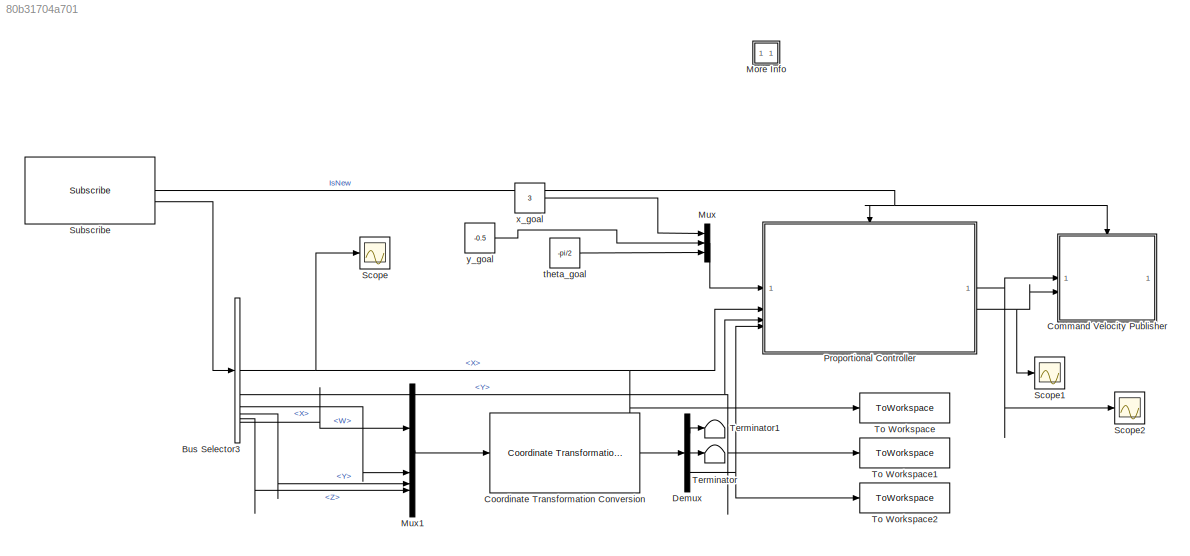
MODEL slx_80b31704a701
KIND model
CONFIG AbsTol = auto
CONFIG EnableMultiTasking = on
CONFIG FixedStep = 0.02
CONFIG MaxStep = auto
CONFIG MinStep = auto
CONFIG RelTol = 1e-3
CONFIG SampleTimeConstraint = Unconstrained
CONFIG SolverName = FixedStepDiscrete
CONFIG StartTime = 0.0
CONFIG StopTime = Inf
BLOCK [BusSelector] Bus Selector3
  OutputSignals = Pose.Pose.Position.X,Pose.Pose.Position.Y,Pose.Pose.Orientation.X,Pose.Pose.Orientation.Y,Pose.Pose.Orientation.Z,Pose.Pose.Orientation.W
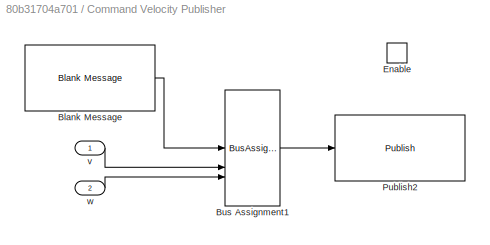
BLOCK [SubSystem] Command Velocity Publisher
BLOCK [Reference] Command Velocity Publisher/Blank Message  REF=robotlib/Blank Message
  SourceBlock = robotlib/Blank Message
  SourceType = ROS Blank Message
BLOCK [BusAssignment] Command Velocity Publisher/Bus Assignment1
  AssignedSignals = Linear.X,Angular.Z
  DialogController = Simulink.DDGSource_BusAssignment
BLOCK [EnablePort] Command Velocity Publisher/Enable
BLOCK [Reference] Command Velocity Publisher/Publish2  REF=robotlib/Publish
  AttributesFormatString = %<messageType>
  SourceBlock = robotlib/Publish
  SourceType = ROS Publish
BLOCK [Inport] Command Velocity Publisher/v
BLOCK [Inport] Command Velocity Publisher/w
  Port = 2
BLOCK [Reference] Coordinate Transformation Conversion  REF=robotcorelib/Coordinate Transformation Conversion
  LibrarySourceBlock = roslib/Utilities/Coordinate Transformation Conversion
  SourceBlock = robotcorelib/Coordinate Transformation Conversion
  SourceType = robotics.slcore.internal.block.CoordinateTransformationConversion
BLOCK [Demux] Demux
  Outputs = 3
BLOCK [SubSystem] More Info
  OpenFcn = showdemo(bdroot(gcb))
BLOCK [Mux] Mux
  DisplayOption = bar
  Inputs = 3
BLOCK [Mux] Mux1
  DisplayOption = bar
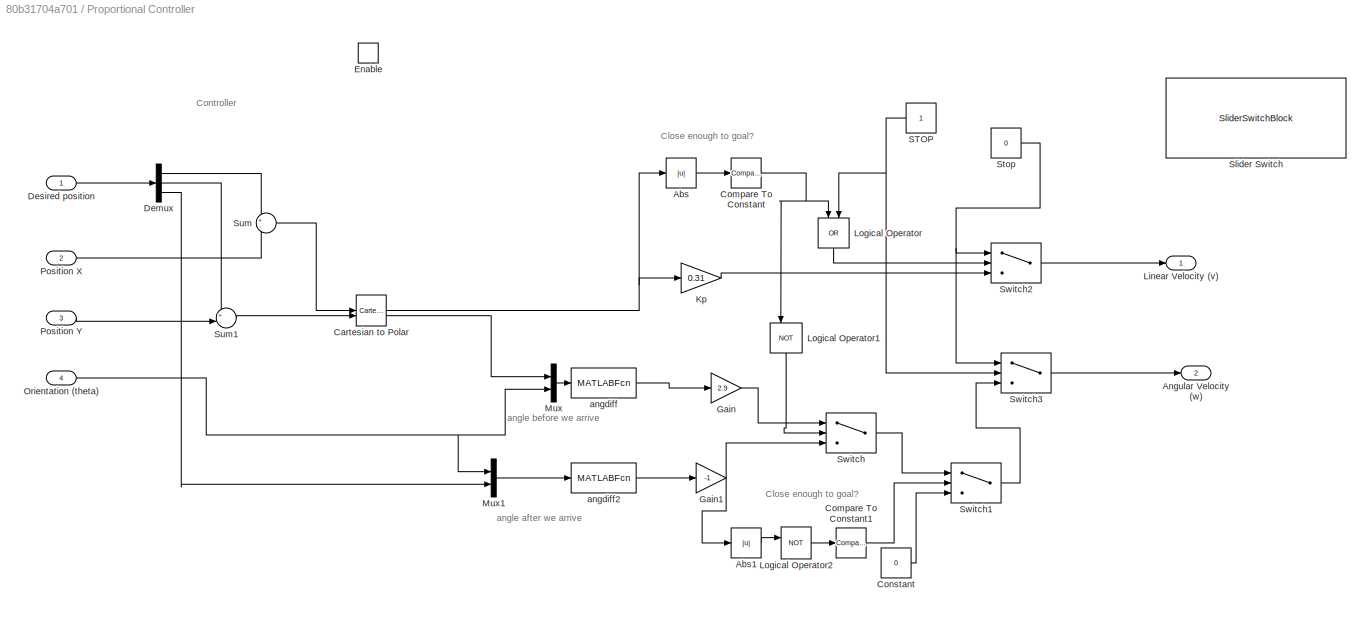
BLOCK [SubSystem] Proportional Controller
BLOCK [Abs] Proportional Controller/Abs
  SaturateOnIntegerOverflow = off
BLOCK [Abs] Proportional Controller/Abs1
  SaturateOnIntegerOverflow = off
BLOCK [Outport] Proportional Controller/Angular Velocity (w)
  Port = 2
  VectorParamsAs1DForOutWhenUnconnected = off
BLOCK [Reference] Proportional Controller/Cartesian to Polar  REF=simulink_extras/Transformations/Cartesian to
Polar
  SourceBlock = simulink_extras/Transformations/Cartesian to\nPolar
  SourceType = Cart2Polar
BLOCK [Reference] Proportional Controller/Compare To Constant  REF=simulink/Logic and Bit
Operations/Compare
To Constant
  SourceBlock = simulink/Logic and Bit\nOperations/Compare\nTo Constant
  SourceType = Compare To Constant
BLOCK [Reference] Proportional Controller/Compare To Constant1  REF=simulink/Logic and Bit
Operations/Compare
To Constant
  SourceBlock = simulink/Logic and Bit\nOperations/Compare\nTo Constant
  SourceType = Compare To Constant
BLOCK [Constant] Proportional Controller/Constant
  Value = 0
BLOCK [Demux] Proportional Controller/Demux
  Outputs = 3
BLOCK [Inport] Proportional Controller/Desired position
BLOCK [EnablePort] Proportional Controller/Enable
BLOCK [Gain] Proportional Controller/Gain
  Gain = 2.9
BLOCK [Gain] Proportional Controller/Gain1
  Gain = -1
BLOCK [Gain] Proportional Controller/Kp
  Gain = 0.31
BLOCK [Outport] Proportional Controller/Linear Velocity (v)
  VectorParamsAs1DForOutWhenUnconnected = off
BLOCK [Logic] Proportional Controller/Logical Operator
  AllPortsSameDT = off
  NameLocation = left
  Operator = OR
  OutDataTypeStr = boolean
BLOCK [Logic] Proportional Controller/Logical Operator1
  AllPortsSameDT = off
  NameLocation = left
  Operator = NOT
  OutDataTypeStr = boolean
BLOCK [Logic] Proportional Controller/Logical Operator2
  AllPortsSameDT = off
  Operator = NOT
  OutDataTypeStr = boolean
BLOCK [Mux] Proportional Controller/Mux
  DisplayOption = bar
  Inputs = 2
BLOCK [Mux] Proportional Controller/Mux1
  DisplayOption = bar
  Inputs = 2
BLOCK [Inport] Proportional Controller/Orientation (theta)
  Port = 4
BLOCK [Inport] Proportional Controller/Position X
  Port = 2
BLOCK [Inport] Proportional Controller/Position Y
  Port = 3
BLOCK [Constant] Proportional Controller/STOP 
  NameLocation = top
BLOCK [SliderSwitchBlock] Proportional Controller/Slider Switch
BLOCK [Constant] Proportional Controller/Stop
  Value = 0
BLOCK [Sum] Proportional Controller/Sum
  Inputs = +-
BLOCK [Sum] Proportional Controller/Sum1
  Inputs = +-|
BLOCK [Switch] Proportional Controller/Switch
  Criteria = u2 > Threshold
  InputSameDT = off
  SaturateOnIntegerOverflow = off
BLOCK [Switch] Proportional Controller/Switch1
  Criteria = u2 > Threshold
  InputSameDT = off
  SaturateOnIntegerOverflow = off
BLOCK [Switch] Proportional Controller/Switch2
  Criteria = u2 ~= 0
  InputSameDT = off
  SaturateOnIntegerOverflow = off
BLOCK [Switch] Proportional Controller/Switch3
  Criteria = u2 ~= 0
  InputSameDT = off
  SaturateOnIntegerOverflow = off
BLOCK [MATLABFcn] Proportional Controller/angdiff
  MATLABFcn = angdiff(u(2), u(1))
BLOCK [MATLABFcn] Proportional Controller/angdiff2
  MATLABFcn = angdiff(u(2), u(1))
BLOCK [Scope] Scope
  Floating = off
  NumInputPorts = 1
  ScopeSpecificationString = Simulink.scopes.TimeScopeBlockCfg('CurrentConfiguration', extmgr.ConfigurationSet(extmgr.Configuration('Core','General UI',true),extmgr.Configuration('Core','Source UI',true),extmgr.Configuration('Sources','WiredSimulink',true),extmgr.Configuration('Visuals','Time Domain',true,'SerializedDisplays',{struct('MinYLimReal','-0.05873','MaxYLimReal','0.52853','YLabelReal','','MinYLimMag','0.00000','MaxY...<+1357ch>
BLOCK [Scope] Scope1
  Floating = off
  NumInputPorts = 1
  ScopeSpecificationString = Simulink.scopes.TimeScopeBlockCfg('CurrentConfiguration', extmgr.ConfigurationSet(extmgr.Configuration('Core','General UI',true),extmgr.Configuration('Core','Source UI',true),extmgr.Configuration('Sources','WiredSimulink',true,'DataLoggingVariableName','ScopeData1'),extmgr.Configuration('Visuals','Time Domain',true,'SerializedDisplays',{struct('MinYLimReal','-0.34679','MaxYLimReal','2.56799','YLab...<+1450ch>
BLOCK [Scope] Scope2
  Floating = off
  NumInputPorts = 1
  ScopeSpecificationString = Simulink.scopes.TimeScopeBlockCfg('CurrentConfiguration', extmgr.ConfigurationSet(extmgr.Configuration('Core','General UI',true),extmgr.Configuration('Core','Source UI',true),extmgr.Configuration('Sources','WiredSimulink',true,'DataLoggingVariableName','ScopeData2'),extmgr.Configuration('Visuals','Time Domain',true,'SerializedDisplays',{struct('MinYLimReal','-0.0274','MaxYLimReal','0.2466','YLabel...<+1378ch>
BLOCK [Reference] Subscribe  REF=robotlib/Subscribe
  SourceBlock = robotlib/Subscribe
  SourceType = ROS Subscribe
BLOCK [Terminator] Terminator
BLOCK [Terminator] Terminator1
BLOCK [ToWorkspace] To Workspace
  FixptAsFi = on
  MaxDataPoints = inf
  SampleTime = -1
  SaveFormat = Timeseries
  VariableName = x_exp
BLOCK [ToWorkspace] To Workspace1
  FixptAsFi = on
  MaxDataPoints = inf
  SampleTime = -1
  SaveFormat = Timeseries
  VariableName = y_exp
BLOCK [ToWorkspace] To Workspace2
  FixptAsFi = on
  MaxDataPoints = inf
  SampleTime = -1
  SaveFormat = Timeseries
  VariableName = theta_exp
BLOCK [Constant] theta_goal
  Value = -pi/2
BLOCK [Constant] x_goal
  Value = 3
BLOCK [Constant] y_goal
  Value = -0.5
ANNOTATION Proportional Controller: Controller
ANNOTATION Proportional Controller: Close enough to goal?
ANNOTATION Proportional Controller: angle after we arrive
ANNOTATION Proportional Controller: angle before we arrive
NET Bus Selector3:1 -> Proportional Controller:2, Scope:1, To Workspace:1
NET Bus Selector3:2 -> Proportional Controller:3, To Workspace1:1
LINE Bus Selector3:3 -> Mux1:2
LINE Bus Selector3:4 -> Mux1:3
LINE Bus Selector3:5 -> Mux1:4
LINE Bus Selector3:6 -> Mux1:1
LINE Command Velocity Publisher/Blank Message:1 -> Command Velocity Publisher/Bus Assignment1:1
LINE Command Velocity Publisher/Bus Assignment1:1 -> Command Velocity Publisher/Publish2:1
LINE Command Velocity Publisher/v:1 -> Command Velocity Publisher/Bus Assignment1:2
LINE Command Velocity Publisher/w:1 -> Command Velocity Publisher/Bus Assignment1:3
LINE Coordinate Transformation Conversion:1 -> Demux:1
LINE Demux:1 -> Terminator1:1
LINE Demux:2 -> Terminator:1
NET Demux:3 -> Proportional Controller:4, To Workspace2:1
LINE Mux1:1 -> Coordinate Transformation Conversion:1
LINE Mux:1 -> Proportional Controller:1
LINE Proportional Controller/Abs1:1 -> Proportional Controller/Logical Operator2:1
LINE Proportional Controller/Abs:1 -> Proportional Controller/Compare To Constant:1
NET Proportional Controller/Cartesian to Polar:1 -> Proportional Controller/Abs:1, Proportional Controller/Kp:1
LINE Proportional Controller/Cartesian to Polar:2 -> Proportional Controller/Mux:1
LINE Proportional Controller/Compare To Constant1:1 -> Proportional Controller/Switch1:2
NET Proportional Controller/Compare To Constant:1 -> Proportional Controller/Logical Operator1:1, Proportional Controller/Logical Operator:1
LINE Proportional Controller/Constant:1 -> Proportional Controller/Switch1:3
LINE Proportional Controller/Demux:1 -> Proportional Controller/Sum:1
LINE Proportional Controller/Demux:2 -> Proportional Controller/Sum1:1
LINE Proportional Controller/Demux:3 -> Proportional Controller/Mux1:2
LINE Proportional Controller/Desired position:1 -> Proportional Controller/Demux:1
NET Proportional Controller/Gain1:1 -> Proportional Controller/Abs1:1, Proportional Controller/Switch:3
LINE Proportional Controller/Gain:1 -> Proportional Controller/Switch:1
LINE Proportional Controller/Kp:1 -> Proportional Controller/Switch2:3
LINE Proportional Controller/Logical Operator1:1 -> Proportional Controller/Switch:2
LINE Proportional Controller/Logical Operator2:1 -> Proportional Controller/Compare To Constant1:1
LINE Proportional Controller/Logical Operator:1 -> Proportional Controller/Switch2:2
LINE Proportional Controller/Mux1:1 -> Proportional Controller/angdiff2:1
LINE Proportional Controller/Mux:1 -> Proportional Controller/angdiff:1
NET Proportional Controller/Orientation (theta):1 -> Proportional Controller/Mux1:1, Proportional Controller/Mux:2
LINE Proportional Controller/Position X:1 -> Proportional Controller/Sum:2
LINE Proportional Controller/Position Y:1 -> Proportional Controller/Sum1:2
NET Proportional Controller/STOP :1 -> Proportional Controller/Logical Operator:2, Proportional Controller/Switch3:2
NET Proportional Controller/Stop:1 -> Proportional Controller/Switch2:1, Proportional Controller/Switch3:1
LINE Proportional Controller/Sum1:1 -> Proportional Controller/Cartesian to Polar:2
LINE Proportional Controller/Sum:1 -> Proportional Controller/Cartesian to Polar:1
LINE Proportional Controller/Switch1:1 -> Proportional Controller/Switch3:3
LINE Proportional Controller/Switch2:1 -> Proportional Controller/Linear Velocity (v):1
LINE Proportional Controller/Switch3:1 -> Proportional Controller/Angular Velocity (w):1
LINE Proportional Controller/Switch:1 -> Proportional Controller/Switch1:1
LINE Proportional Controller/angdiff2:1 -> Proportional Controller/Gain1:1
LINE Proportional Controller/angdiff:1 -> Proportional Controller/Gain:1
NET Proportional Controller:1 -> Command Velocity Publisher:1, Scope2:1
NET Proportional Controller:2 -> Command Velocity Publisher:2, Scope1:1
NET Subscribe:1 -> Command Velocity Publisher:enable, Proportional Controller:enable
LINE Subscribe:2 -> Bus Selector3:1
LINE theta_goal:1 -> Mux:3
LINE x_goal:1 -> Mux:1
LINE y_goal:1 -> Mux:2
note: NET lines group one-source signal fan-out (src -> all destinations, sorted); 1:1 wires keep LINE
